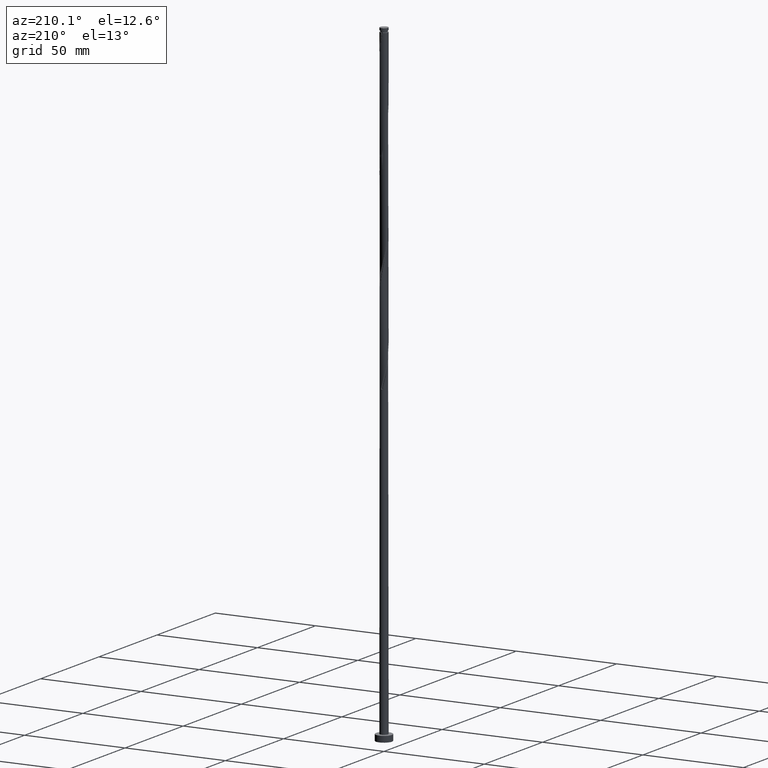
[diagram: clean part render]
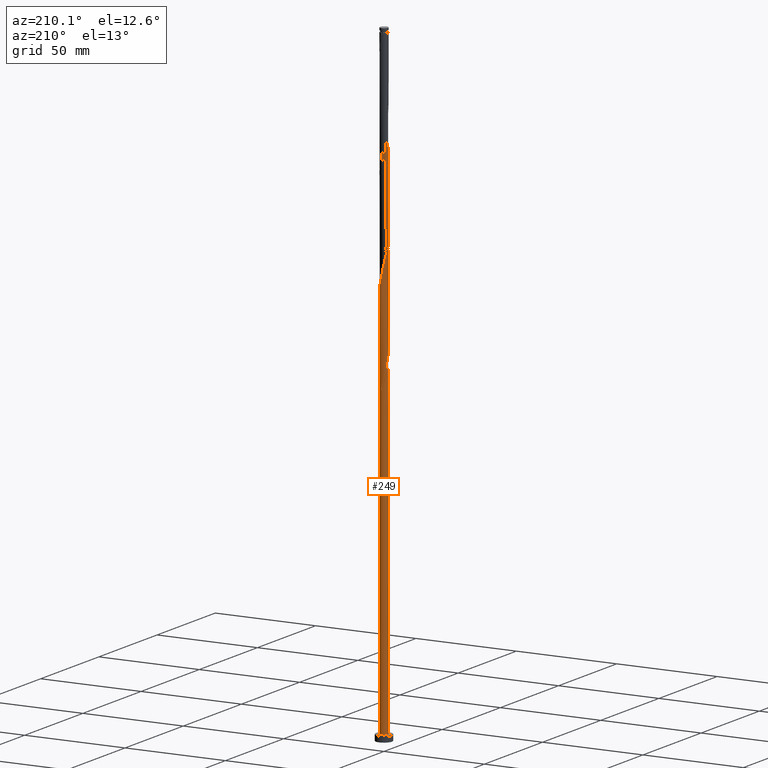
[diagram: same view with one face highlighted and labeled with its STEP entity id]
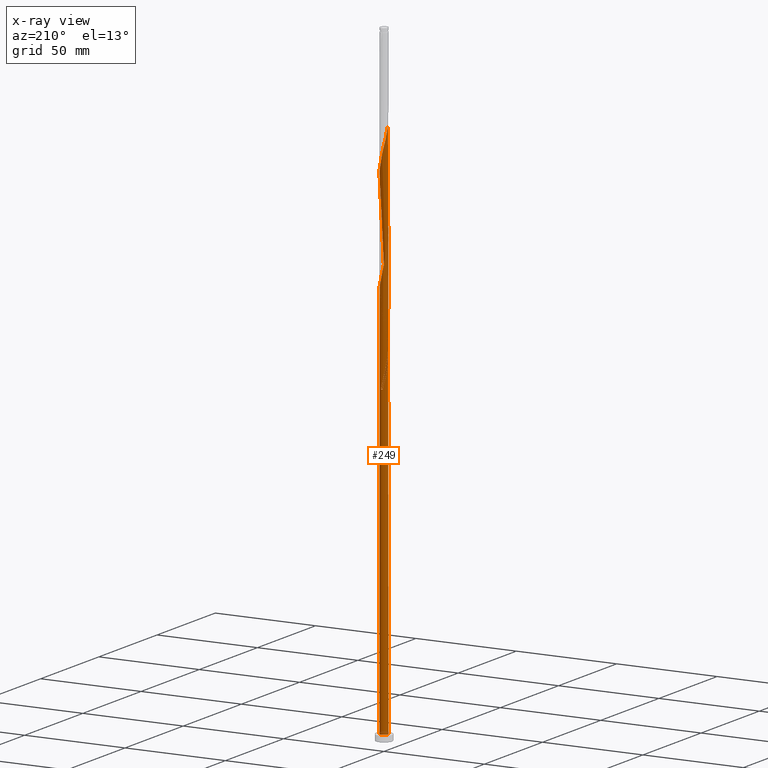
[diagram: x-ray of the same camera — body ghosted, the highlighted face saturated]
A machine part, auxiliary view. The second image highlights one B-rep face of the part: STEP entity #249.
The next image is the same camera in x-ray: the body ghosted, the highlighted face saturated — about 0% of this face is hidden behind the body in this view.
In plain terms, the highlighted cylindrical surface (bore or boss wall) has radius 2 mm, axis along (-0, -0, -1).
Its self-contained STEP definition (entity closure, byte-faithful):
#10 = CARTESIAN_POINT ( 'NONE',  ( -1.208993210585249667, 1.593215433254016045, 211.7661309020668625 ) ) ;
#19 = CARTESIAN_POINT ( 'NONE',  ( 0.7102568395283807012, 1.883166478951371126, 203.3286309020668909 ) ) ;
#26 = CARTESIAN_POINT ( 'NONE',  ( -1.780535513642756085, 0.9108750104470637599, 163.0161309020669478 ) ) ;
#36 = CARTESIAN_POINT ( 'NONE',  ( 0.3979949748426505063, 1.959999999999999076, 155.5161309020669194 ) ) ;
#40 = CARTESIAN_POINT ( 'NONE',  ( 0.3979949748426501177, -1.960000000000002629, 234.2661309020669194 ) ) ;
#45 = CARTESIAN_POINT ( 'NONE',  ( -0.04812462067217377487, 1.999420921388279426, 157.3911309020668625 ) ) ;
#50 = CARTESIAN_POINT ( 'NONE',  ( 1.729436252609930280, 1.029480943826289741, 250.2036309020669194 ) ) ;
#58 = CARTESIAN_POINT ( 'NONE',  ( 1.456994613898102253, 1.388505477344208483, 252.0786309020669478 ) ) ;
#64 = CARTESIAN_POINT ( 'NONE',  ( 0.1771560126384324751, 2.004843263880990989, 156.4536309020669194 ) ) ;
#69 = CARTESIAN_POINT ( 'NONE',  ( 0.7102568395283807012, 1.883166478951371126, 255.8286309020669194 ) ) ;
#72 = CARTESIAN_POINT ( 'NONE',  ( 0.000000000000000000, 0.000000000000000000, 3.000000000000000000 ) ) ;
#74 = ORIENTED_EDGE ( 'NONE', *, *, #424, .F. ) ;
#79 = CARTESIAN_POINT ( 'NONE',  ( -0.04812462067217446876, -1.999420921388282979, 232.3911309020669478 ) ) ;
#89 = VERTEX_POINT ( 'NONE', #1254 ) ;
#93 = CARTESIAN_POINT ( 'NONE',  ( -1.593215433254016045, -1.208993210585249445, 172.3911309020668909 ) ) ;
#112 = CARTESIAN_POINT ( 'NONE',  ( -1.999999999999998668, 0.2010075630518445289, 169.4773769010093076 ) ) ;
#128 = CARTESIAN_POINT ( 'NONE',  ( 0.1771560126384322253, -2.004843263880994542, 180.8286309020669194 ) ) ;
#129 = CARTESIAN_POINT ( 'NONE',  ( -1.959999999999998632, 0.3979949748426501732, 168.6411309020669194 ) ) ;
#144 = CARTESIAN_POINT ( 'NONE',  ( -1.938582528923471493, 0.4918310467555804810, 164.8911309020669478 ) ) ;
#145 = CARTESIAN_POINT ( 'NONE',  ( -1.677904548334141044, 1.111493181365747374, 214.5786309020668625 ) ) ;
#153 = CIRCLE ( 'NONE', #1753, 2.000000000000000000 ) ;
#154 = CYLINDRICAL_SURFACE ( 'NONE', #1019, 2.000000000000000000 ) ;
#160 = CARTESIAN_POINT ( 'NONE',  ( -1.208993210585249667, 1.593215433254016045, 159.2661309020668909 ) ) ;
#173 = EDGE_CURVE ( 'NONE', #1482, #244, #985, .T. ) ;
#177 = CARTESIAN_POINT ( 'NONE',  ( 0.9108750104470642039, 1.780535513642755863, 254.8911309020668909 ) ) ;
#185 = CARTESIAN_POINT ( 'NONE',  ( -1.822296494364470387, -0.8241574404365790141, 223.0161309020668909 ) ) ;
#193 = CARTESIAN_POINT ( 'NONE',  ( -1.111493181365747374, -1.677904548334140822, 227.7036309020668909 ) ) ;
#202 = CARTESIAN_POINT ( 'NONE',  ( 0.6188339370468680656, -1.915156736119010494, 235.2036309020669478 ) ) ;
#212 = CARTESIAN_POINT ( 'NONE',  ( -0.9108750104470638709, -1.780535513642755863, 228.6411309020668625 ) ) ;
#222 = CARTESIAN_POINT ( 'NONE',  ( 1.533205012839174319, -1.284243897631924813, 187.3911309020668909 ) ) ;
#227 = ORIENTED_EDGE ( 'NONE', *, *, #994, .T. ) ;
#244 = VERTEX_POINT ( 'NONE', #1523 ) ;
#247 = CARTESIAN_POINT ( 'NONE',  ( -0.4918310467555808141, -1.938582528923471049, 178.0161309020668625 ) ) ;
#249 = ADVANCED_FACE ( 'NONE', ( #1405 ), #154, .T. ) ;
#257 = CARTESIAN_POINT ( 'NONE',  ( -1.284243897631922149, 1.533205012839172543, 163.0161309020669194 ) ) ;
#265 = CARTESIAN_POINT ( 'NONE',  ( 1.456994613898102253, 1.388505477344208483, 199.5786309020669478 ) ) ;
#273 = CARTESIAN_POINT ( 'NONE',  ( -1.993998578895571860, 0.2734052539827810935, 165.8286309020669194 ) ) ;
#281 = CARTESIAN_POINT ( 'NONE',  ( -1.533205012839174763, 1.284243897631924813, 161.1411309020669194 ) ) ;
#289 = DIRECTION ( 'NONE',  ( -1.000000000000000000, 0.000000000000000000, 0.000000000000000000 ) ) ;
#291 = VECTOR ( 'NONE', #1673, 1000.000000000000000 ) ;
#297 = CARTESIAN_POINT ( 'NONE',  ( 1.993998578895571638, -0.2734052539827813155, 192.0786309020669194 ) ) ;
#300 = EDGE_CURVE ( 'NONE', #89, #244, #520, .T. ) ;
#316 = CARTESIAN_POINT ( 'NONE',  ( -1.284243897631924813, -1.533205012839174763, 226.7661309020668909 ) ) ;
#326 = CARTESIAN_POINT ( 'NONE',  ( 1.822296494364470387, 0.8241574404365790141, 249.2661309020669194 ) ) ;
#342 = CARTESIAN_POINT ( 'NONE',  ( -1.533205012839174763, 1.284243897631924813, 266.1411309020668909 ) ) ;
#377 = ORIENTED_EDGE ( 'NONE', *, *, #1677, .F. ) ;
#388 = CARTESIAN_POINT ( 'NONE',  ( -0.9108750104470619835, 1.780535513642753198, 161.1411309020670046 ) ) ;
#397 = CARTESIAN_POINT ( 'NONE',  ( -1.111493181365747374, -1.677904548334140822, 175.2036309020668909 ) ) ;
#406 = CARTESIAN_POINT ( 'NONE',  ( -0.3979949748426498402, 1.960000000000002629, 208.0161309020669194 ) ) ;
#409 = DIRECTION ( 'NONE',  ( 1.000000000000000000, 0.000000000000000000, 0.000000000000000000 ) ) ;
#417 = CARTESIAN_POINT ( 'NONE',  ( -1.993998578895571860, 0.2734052539827810935, 218.3286309020670046 ) ) ;
#424 = EDGE_CURVE ( 'NONE', #1124, #1774, #1176, .T. ) ;
#425 = CARTESIAN_POINT ( 'NONE',  ( -1.388505477344208705, 1.456994613898102253, 160.2036309020669478 ) ) ;
#426 = CARTESIAN_POINT ( 'NONE',  ( 0.2734052539827813155, 1.993998578895571638, 205.2036309020669478 ) ) ;
#431 = CARTESIAN_POINT ( 'NONE',  ( -2.000000000000002665, 0.02406579433278400321, 166.8662511359357552 ) ) ;
#433 = VECTOR ( 'NONE', #627, 1000.000000000000000 ) ;
#444 = CARTESIAN_POINT ( 'NONE',  ( 1.593215433254016267, 1.208993210585249445, 198.6411309020669194 ) ) ;
#452 = CARTESIAN_POINT ( 'NONE',  ( 1.533205012839174319, -1.284243897631924813, 239.8911309020668909 ) ) ;
#460 = CARTESIAN_POINT ( 'NONE',  ( 0.4918310467555809251, 1.938582528923471493, 256.7661309020668909 ) ) ;
#464 = AXIS2_PLACEMENT_3D ( 'NONE', #72, #757, #1708 ) ;
#472 = CARTESIAN_POINT ( 'NONE',  ( -1.780535513642756085, 0.9108750104470637599, 268.0161309020669478 ) ) ;
#475 = CARTESIAN_POINT ( 'NONE',  ( -2.000000000000000000, 0.000000000000000000, 315.0000000000000000 ) ) ;
#482 = CARTESIAN_POINT ( 'NONE',  ( 1.960000000000002629, 0.3979949748426499512, 247.3911309020669762 ) ) ;
#493 = EDGE_CURVE ( 'NONE', #1482, #1124, #803, .T. ) ;
#520 = CIRCLE ( 'NONE', #464, 2.000000000000000000 ) ;
#526 = CARTESIAN_POINT ( 'NONE',  ( 1.677904548334141044, -1.111493181365747818, 188.3286309020669478 ) ) ;
#545 = CARTESIAN_POINT ( 'NONE',  ( -0.1771560126384319755, 2.004843263880994542, 207.0786309020669478 ) ) ;
#558 = CARTESIAN_POINT ( 'NONE',  ( -1.780535513642756085, 0.9108750104470637599, 215.5161309020668909 ) ) ;
#568 = CARTESIAN_POINT ( 'NONE',  ( 0.4918310467555809251, 1.938582528923471493, 204.2661309020668625 ) ) ;
#578 = CARTESIAN_POINT ( 'NONE',  ( -1.999420921388282979, 0.04812462067217436468, 166.7661309020669478 ) ) ;
#596 = CARTESIAN_POINT ( 'NONE',  ( 1.938582528923471493, -0.4918310467555809251, 243.6411309020669194 ) ) ;
#604 = CARTESIAN_POINT ( 'NONE',  ( -1.999999999999999556, 2.089608293013599291E-15, 170.3156479799729652 ) ) ;
#605 = CARTESIAN_POINT ( 'NONE',  ( 1.593215433254016267, 1.208993210585249445, 251.1411309020668625 ) ) ;
#614 = CARTESIAN_POINT ( 'NONE',  ( 1.208993210585249445, -1.593215433254016045, 238.0161309020668625 ) ) ;
#624 = CARTESIAN_POINT ( 'NONE',  ( -1.029480943826290185, 1.729436252609930280, 263.3286309020668909 ) ) ;
#627 = DIRECTION ( 'NONE',  ( -0.000000000000000000, -0.000000000000000000, -1.000000000000000000 ) ) ;
#632 = CARTESIAN_POINT ( 'NONE',  ( 1.677904548334141044, -1.111493181365747818, 240.8286309020668909 ) ) ;
#643 = CARTESIAN_POINT ( 'NONE',  ( -0.04812462067217446876, -1.999420921388282979, 179.8911309020668909 ) ) ;
#671 = CARTESIAN_POINT ( 'NONE',  ( -1.822296494364470387, -0.8241574404365790141, 170.5161309020669478 ) ) ;
#677 = ORIENTED_EDGE ( 'NONE', *, *, #1561, .F. ) ;
#680 = CARTESIAN_POINT ( 'NONE',  ( -1.822296494364466835, 0.8241574404365784590, 166.7661309020669478 ) ) ;
#713 = CARTESIAN_POINT ( 'NONE',  ( -1.388505477344208705, 1.456994613898102253, 212.7036309020669478 ) ) ;
#717 = ORIENTED_EDGE ( 'NONE', *, *, #173, .T. ) ;
#728 = CARTESIAN_POINT ( 'NONE',  ( 1.780535513642755863, -0.9108750104470642039, 241.7661309020669194 ) ) ;
#736 = CARTESIAN_POINT ( 'NONE',  ( -0.2734052539827812045, -1.993998578895571860, 231.4536309020669194 ) ) ;
#747 = CARTESIAN_POINT ( 'NONE',  ( -0.4918310467555808141, -1.938582528923471049, 230.5161309020669194 ) ) ;
#755 = CARTESIAN_POINT ( 'NONE',  ( -1.915156736119010494, -0.6188339370468681766, 222.0786309020669194 ) ) ;
#757 = DIRECTION ( 'NONE',  ( 0.000000000000000000, 0.000000000000000000, 1.000000000000000000 ) ) ;
#758 = AXIS2_PLACEMENT_3D ( 'NONE', #1552, #1666, #409 ) ;
#766 = CARTESIAN_POINT ( 'NONE',  ( 0.1771560126384322253, -2.004843263880994542, 233.3286309020669478 ) ) ;
#782 = CARTESIAN_POINT ( 'NONE',  ( -1.915156736119010494, -0.6188339370468681766, 169.5786309020669478 ) ) ;
#798 = CARTESIAN_POINT ( 'NONE',  ( -2.000000000000003109, -1.488845908772177317E-15, 166.9666138241609019 ) ) ;
#803 =( BOUNDED_CURVE ( )  B_SPLINE_CURVE ( 2, ( #798, #1219, #1068, #782, #671, #1778, #93, #809, #1239, #397, #947, #1377, #247, #1077, #643, #128, #939, #1494, #1798, #1788, #1626, #955, #222, #526, #1089, #1208, #1551, #297, #964, #1265, #1698, #1127, #1681, #984, #444, #265, #1257, #1663, #1274, #19, #568, #426, #1807, #545, #406, #1522, #827, #1414, #10, #713, #1397, #145, #558, #1119, #1672, #417, #1724, #1435, #1706, #755, #185, #1040, #1745, #871, #316, #193, #212, #1292, #747, #736, #79, #766, #40, #202, #1443, #1307, #614, #1183, #452, #632, #728, #1153, #596, #1576, #1298, #1161, #482, #897, #326, #50, #605, #58, #1715, #1318, #177, #69, #460, #1173, #1021, #1011, #1567, #861, #1596, #624, #1191, #1735, #342, #1031, #472, #1428, #1459, #881, #1585, #1330, #1004 ),
 .UNSPECIFIED., .F., .T. ) 
 B_SPLINE_CURVE_WITH_KNOTS ( ( 3, 2, 2, 2, 2, 2, 2, 2, 2, 2, 2, 2, 2, 2, 2, 2, 2, 2, 2, 2, 2, 2, 2, 2, 2, 2, 2, 2, 2, 2, 2, 2, 2, 2, 2, 2, 2, 2, 2, 2, 2, 2, 2, 2, 2, 2, 2, 2, 2, 2, 2, 2, 2, 2, 2, 2, 2, 3 ),
 ( 0.05453034012992190316, 0.06250000000000000000, 0.07142857142857139685, 0.08035714285714290472, 0.08928571428571430157, 0.09821428571428569843, 0.1071428571428570953, 0.1160714285714286031, 0.1250000000000000000, 0.1339285714285713969, 0.1428571428571429047, 0.1517857142857143016, 0.1607142857142856984, 0.1696428571428570953, 0.1785714285714286031, 0.1875000000000000000, 0.1964285714285713969, 0.2053571428571429047, 0.2142857142857143016, 0.2232142857142856984, 0.2321428571428570953, 0.2410714285714286031, 0.2500000000000000000, 0.2589285714285713969, 0.2678571428571429047, 0.2767857142857143016, 0.2857142857142856984, 0.2946428571428570953, 0.3035714285714286031, 0.3125000000000000000, 0.3214285714285713969, 0.3303571428571429047, 0.3392857142857143016, 0.3482142857142856984, 0.3571428571428570953, 0.3660714285714286031, 0.3750000000000000000, 0.3839285714285713969, 0.3928571428571429047, 0.4017857142857143016, 0.4107142857142856984, 0.4196428571428570953, 0.4285714285714286031, 0.4375000000000000000, 0.4464285714285713969, 0.4553571428571429047, 0.4642857142857143016, 0.4732142857142856984, 0.4821428571428570953, 0.4910714285714286031, 0.5000000000000000000, 0.5089285714285713969, 0.5178571428571427937, 0.5267857142857143016, 0.5357142857142856984, 0.5446428571428572063, 0.5535714285714286031, 0.5545303401299218615 ),
 .UNSPECIFIED. ) 
 CURVE ( )  GEOMETRIC_REPRESENTATION_ITEM ( )  RATIONAL_B_SPLINE_CURVE ( ( 0.9079949616362383846, 0.9039886423361009893, 0.9090909090909681245, 0.9033747362666427749, 0.9090909090909681245, 0.9033747362666427749, 0.9090909090909681245, 0.9033747362666427749, 0.9090909090909681245, 0.9033747362666427749, 0.9090909090909681245, 0.9033747362666427749, 0.9090909090909681245, 0.9033747362666427749, 0.9090909090909681245, 0.9033747362666427749, 0.9090909090909681245, 0.9033747362666427749, 0.9090909090909681245, 0.9033747362666427749, 0.9090909090909681245, 0.9033747362666427749, 0.9090909090909681245, 0.9033747362666427749, 0.9090909090909681245, 0.9033747362666427749, 0.9090909090909681245, 0.9033747362666427749, 0.9090909090909681245, 0.9033747362666427749, 0.9090909090909681245, 0.9033747362666427749, 0.9090909090909681245, 0.9033747362666427749, 0.9090909090909681245, 0.9033747362666427749, 0.9090909090909681245, 0.9033747362666427749, 0.9090909090909681245, 0.9033747362666427749, 0.9090909090909681245, 0.9033747362666427749, 0.9090909090909681245, 0.9033747362666427749, 0.9090909090909681245, 0.9033747362666427749, 0.9090909090909681245, 0.9033747362666427749, 0.9090909090909681245, 0.9033747362666427749, 0.9090909090909681245, 0.9033747362666427749, 0.9090909090909681245, 0.9033747362666427749, 0.9090909090909681245, 0.9033747362666427749, 0.9090909090909681245, 0.9033747362666427749, 0.9090909090909681245, 0.9033747362666427749, 0.9090909090909681245, 0.9033747362666427749, 0.9090909090909681245, 0.9033747362666427749, 0.9090909090909681245, 0.9033747362666427749, 0.9090909090909681245, 0.9033747362666427749, 0.9090909090909681245, 0.9033747362666427749, 0.9090909090909681245, 0.9033747362666427749, 0.9090909090909681245, 0.9033747362666427749, 0.9090909090909681245, 0.9033747362666427749, 0.9090909090909681245, 0.9033747362666427749, 0.9090909090909681245, 0.9033747362666427749, 0.9090909090909681245, 0.9033747362666427749, 0.9090909090909681245, 0.9033747362666427749, 0.9090909090909681245, 0.9033747362666427749, 0.9090909090909681245, 0.9033747362666427749, 0.9090909090909681245, 0.9033747362666427749, 0.9090909090909681245, 0.9033747362666427749, 0.9090909090909681245, 0.9033747362666427749, 0.9090909090909681245, 0.9033747362666427749, 0.9090909090909681245, 0.9033747362666427749, 0.9090909090909681245, 0.9033747362666427749, 0.9090909090909681245, 0.9033747362666427749, 0.9090909090909681245, 0.9033747362666427749, 0.9090909090909681245, 0.9033747362666427749, 0.9090909090909681245, 0.9033747362666427749, 0.9090909090909681245, 0.9033747362666427749, 0.9090909090909681245, 0.9033747362666427749, 0.9090909090909681245, 0.9084770030215100212, 0.9079949616362383846 ) ) 
 REPRESENTATION_ITEM ( '' )  );
#809 = CARTESIAN_POINT ( 'NONE',  ( -1.456994613898102253, -1.388505477344208705, 173.3286309020669478 ) ) ;
#810 = CARTESIAN_POINT ( 'NONE',  ( -1.593215433254013380, 1.208993210585247891, 164.8911309020669478 ) ) ;
#827 = CARTESIAN_POINT ( 'NONE',  ( -0.8241574404365793471, 1.822296494364470387, 209.8911309020669478 ) ) ;
#831 = ORIENTED_EDGE ( 'NONE', *, *, #300, .T. ) ;
#849 = ORIENTED_EDGE ( 'NONE', *, *, #914, .T. ) ;
#861 = CARTESIAN_POINT ( 'NONE',  ( -0.6188339370468681766, 1.915156736119010494, 261.4536309020668341 ) ) ;
#871 = CARTESIAN_POINT ( 'NONE',  ( -1.456994613898102253, -1.388505477344208705, 225.8286309020668909 ) ) ;
#875 = CARTESIAN_POINT ( 'NONE',  ( -2.000000000000002665, -1.194061881722046849E-15, 271.9666138241607882 ) ) ;
#881 = CARTESIAN_POINT ( 'NONE',  ( -1.993998578895571860, 0.2734052539827810935, 270.8286309020670046 ) ) ;
#897 = CARTESIAN_POINT ( 'NONE',  ( 1.915156736119010494, 0.6188339370468680656, 248.3286309020669478 ) ) ;
#914 = EDGE_CURVE ( 'NONE', #244, #89, #1457, .T. ) ;
#921 = CARTESIAN_POINT ( 'NONE',  ( -2.000000000000003109, -1.488845908772177514E-15, 166.9666138241609019 ) ) ;
#939 = CARTESIAN_POINT ( 'NONE',  ( 0.3979949748426501177, -1.960000000000002629, 181.7661309020669478 ) ) ;
#947 = CARTESIAN_POINT ( 'NONE',  ( -0.9108750104470638709, -1.780535513642755863, 176.1411309020669194 ) ) ;
#948 = CARTESIAN_POINT ( 'NONE',  ( -0.4918310467555793153, 1.938582528923467940, 159.2661309020669478 ) ) ;
#955 = CARTESIAN_POINT ( 'NONE',  ( 1.388505477344208705, -1.456994613898102253, 186.4536309020669194 ) ) ;
#964 = CARTESIAN_POINT ( 'NONE',  ( 1.999420921388282979, -0.04812462067217463529, 193.0161309020668625 ) ) ;
#972 = CARTESIAN_POINT ( 'NONE',  ( -0.3979949748426499512, 1.960000000000002629, 155.5161309020669194 ) ) ;
#973 = ORIENTED_EDGE ( 'NONE', *, *, #173, .F. ) ;
#984 = CARTESIAN_POINT ( 'NONE',  ( 1.729436252609930280, 1.029480943826289741, 197.7036309020669762 ) ) ;
#985 = LINE ( 'NONE', #1682, #291 ) ;
#994 = EDGE_CURVE ( 'NONE', #1687, #1580, #153, .T. ) ;
#1003 = CARTESIAN_POINT ( 'NONE',  ( -0.8241574404365793471, 1.822296494364470387, 157.3911309020669194 ) ) ;
#1004 = CARTESIAN_POINT ( 'NONE',  ( -2.000000000000002665, -1.194061881722046849E-15, 271.9666138241607882 ) ) ;
#1011 = CARTESIAN_POINT ( 'NONE',  ( -0.1771560126384319755, 2.004843263880994542, 259.5786309020668909 ) ) ;
#1019 = AXIS2_PLACEMENT_3D ( 'NONE', #1128, #1540, #289 ) ;
#1021 = CARTESIAN_POINT ( 'NONE',  ( 0.04812462067217478795, 1.999420921388282979, 258.6411309020668909 ) ) ;
#1031 = CARTESIAN_POINT ( 'NONE',  ( -1.677904548334141044, 1.111493181365747374, 267.0786309020668909 ) ) ;
#1040 = CARTESIAN_POINT ( 'NONE',  ( -1.729436252609930280, -1.029480943826289741, 223.9536309020669762 ) ) ;
#1068 = CARTESIAN_POINT ( 'NONE',  ( -1.960000000000002629, -0.3979949748426502842, 168.6411309020670046 ) ) ;
#1077 = CARTESIAN_POINT ( 'NONE',  ( -0.2734052539827812045, -1.993998578895571860, 178.9536309020668909 ) ) ;
#1089 = CARTESIAN_POINT ( 'NONE',  ( 1.780535513642755863, -0.9108750104470642039, 189.2661309020668909 ) ) ;
#1090 = CARTESIAN_POINT ( 'NONE',  ( -1.456994613898098923, 1.388505477344206263, 163.9536309020669194 ) ) ;
#1095 = EDGE_LOOP ( 'NONE', ( #74, #1392, #717, #849, #831, #973, #377, #227, #677 ) ) ;
#1119 = CARTESIAN_POINT ( 'NONE',  ( -1.883166478951371126, 0.7102568395283802571, 216.4536309020669194 ) ) ;
#1124 = VERTEX_POINT ( 'NONE', #875 ) ;
#1126 = CARTESIAN_POINT ( 'NONE',  ( -0.3979949748426499512, 1.960000000000002629, 155.5161309020669194 ) ) ;
#1127 = CARTESIAN_POINT ( 'NONE',  ( 1.915156736119010494, 0.6188339370468680656, 195.8286309020669194 ) ) ;
#1128 = CARTESIAN_POINT ( 'NONE',  ( 0.000000000000000000, 0.000000000000000000, 315.0000000000000000 ) ) ;
#1153 = CARTESIAN_POINT ( 'NONE',  ( 1.883166478951371348, -0.7102568395283802571, 242.7036309020668909 ) ) ;
#1161 = CARTESIAN_POINT ( 'NONE',  ( 2.004843263880994542, 0.1771560126384321421, 246.4536309020669194 ) ) ;
#1173 = CARTESIAN_POINT ( 'NONE',  ( 0.2734052539827813155, 1.993998578895571638, 257.7036309020669478 ) ) ;
#1176 = LINE ( 'NONE', #475, #433 ) ;
#1183 = CARTESIAN_POINT ( 'NONE',  ( 1.388505477344208705, -1.456994613898102253, 238.9536309020669478 ) ) ;
#1191 = CARTESIAN_POINT ( 'NONE',  ( -1.208993210585249667, 1.593215433254016045, 264.2661309020668341 ) ) ;
#1200 =( BOUNDED_CURVE ( )  B_SPLINE_CURVE ( 2, ( #1357, #112, #129, #1799, #680, #1504, #810, #1090, #257, #1250, #388, #1648, #948, #1378, #45, #64, #1286 ),
 .UNSPECIFIED., .F., .T. ) 
 B_SPLINE_CURVE_WITH_KNOTS ( ( 3, 2, 2, 2, 2, 2, 2, 2, 3 ),
 ( 0.9295303401299220836, 0.9375000000000000000, 0.9464285714285713969, 0.9553571428571429047, 0.9642857142857143016, 0.9732142857142856984, 0.9821428571428570953, 0.9910714285714286031, 1.000000000000000000 ),
 .UNSPECIFIED. ) 
 CURVE ( )  GEOMETRIC_REPRESENTATION_ITEM ( )  RATIONAL_B_SPLINE_CURVE ( ( 0.9079949616362307241, 0.9039886423360937728, 0.9090909090909605750, 0.9033747362666354475, 0.9090909090909605750, 0.9033747362666354475, 0.9090909090909605750, 0.9033747362666354475, 0.9090909090909605750, 0.9033747362666354475, 0.9090909090909605750, 0.9033747362666354475, 0.9090909090909605750, 0.9033747362666354475, 0.9090909090909605750, 0.9033747362666354475, 0.9090909090909605750 ) ) 
 REPRESENTATION_ITEM ( '' )  );
#1208 = CARTESIAN_POINT ( 'NONE',  ( 1.883166478951371348, -0.7102568395283802571, 190.2036309020669194 ) ) ;
#1219 = CARTESIAN_POINT ( 'NONE',  ( -2.000000000000003553, -0.2010075630518398937, 167.8048849031245027 ) ) ;
#1239 = CARTESIAN_POINT ( 'NONE',  ( -1.284243897631924813, -1.533205012839174763, 174.2661309020669194 ) ) ;
#1250 = CARTESIAN_POINT ( 'NONE',  ( -1.111493181365745375, 1.677904548334138157, 162.0786309020668909 ) ) ;
#1254 = CARTESIAN_POINT ( 'NONE',  ( 2.000000000000000000, 0.000000000000000000, 3.000000000000000000 ) ) ;
#1257 = CARTESIAN_POINT ( 'NONE',  ( 1.284243897631924813, 1.533205012839174319, 200.5161309020669194 ) ) ;
#1265 = CARTESIAN_POINT ( 'NONE',  ( 2.004843263880994542, 0.1771560126384321421, 193.9536309020669194 ) ) ;
#1274 = CARTESIAN_POINT ( 'NONE',  ( 0.9108750104470642039, 1.780535513642755863, 202.3911309020669194 ) ) ;
#1275 = DIRECTION ( 'NONE',  ( 0.000000000000000000, -0.000000000000000000, -1.000000000000000000 ) ) ;
#1279 = CARTESIAN_POINT ( 'NONE',  ( -1.677904548334141044, 1.111493181365747374, 162.0786309020669194 ) ) ;
#1284 = CARTESIAN_POINT ( 'NONE',  ( -1.883166478951371126, 0.7102568395283802571, 163.9536309020668909 ) ) ;
#1286 = CARTESIAN_POINT ( 'NONE',  ( 0.3979949748426505063, 1.959999999999999076, 155.5161309020669194 ) ) ;
#1292 = CARTESIAN_POINT ( 'NONE',  ( -0.7102568395283802571, -1.883166478951371348, 229.5786309020668909 ) ) ;
#1298 = CARTESIAN_POINT ( 'NONE',  ( 1.999420921388282979, -0.04812462067217463529, 245.5161309020668625 ) ) ;
#1307 = CARTESIAN_POINT ( 'NONE',  ( 1.029480943826289741, -1.729436252609930280, 237.0786309020669478 ) ) ;
#1318 = CARTESIAN_POINT ( 'NONE',  ( 1.111493181365747818, 1.677904548334140600, 253.9536309020669194 ) ) ;
#1330 = CARTESIAN_POINT ( 'NONE',  ( -2.000000000000002665, 0.02406579433278505098, 271.8662511359357268 ) ) ;
#1357 = CARTESIAN_POINT ( 'NONE',  ( -1.999999999999999556, 2.089608293013599291E-15, 170.3156479799729652 ) ) ;
#1377 = CARTESIAN_POINT ( 'NONE',  ( -0.7102568395283802571, -1.883166478951371348, 177.0786309020668909 ) ) ;
#1378 = CARTESIAN_POINT ( 'NONE',  ( -0.2734052539827800943, 1.993998578895568086, 158.3286309020668625 ) ) ;
#1387 =( BOUNDED_CURVE ( )  B_SPLINE_CURVE ( 2, ( #1126, #1680, #1003, #1521, #160, #425, #281, #1279, #26, #1284, #144, #273, #578, #431, #1421 ),
 .UNSPECIFIED., .F., .T. ) 
 B_SPLINE_CURVE_WITH_KNOTS ( ( 3, 2, 2, 2, 2, 2, 2, 3 ),
 ( 0.000000000000000000, 0.008928571428571396851, 0.01785714285714290472, 0.02678571428571430157, 0.03571428571428569843, 0.04464285714285709528, 0.05357142857142860315, 0.05453034012992190316 ),
 .UNSPECIFIED. ) 
 CURVE ( )  GEOMETRIC_REPRESENTATION_ITEM ( )  RATIONAL_B_SPLINE_CURVE ( ( 0.9090909090909681245, 0.9033747362666427749, 0.9090909090909681245, 0.9033747362666427749, 0.9090909090909681245, 0.9033747362666427749, 0.9090909090909681245, 0.9033747362666427749, 0.9090909090909681245, 0.9033747362666427749, 0.9090909090909681245, 0.9033747362666427749, 0.9090909090909681245, 0.9084770030215100212, 0.9079949616362383846 ) ) 
 REPRESENTATION_ITEM ( '' )  );
#1389 = DIRECTION ( 'NONE',  ( -1.000000000000000000, 0.000000000000000000, 0.000000000000000000 ) ) ;
#1392 = ORIENTED_EDGE ( 'NONE', *, *, #493, .F. ) ;
#1397 = CARTESIAN_POINT ( 'NONE',  ( -1.533205012839174763, 1.284243897631924813, 213.6411309020669194 ) ) ;
#1405 = FACE_OUTER_BOUND ( 'NONE', #1095, .T. ) ;
#1414 = CARTESIAN_POINT ( 'NONE',  ( -1.029480943826290185, 1.729436252609930280, 210.8286309020668909 ) ) ;
#1421 = CARTESIAN_POINT ( 'NONE',  ( -2.000000000000003109, -1.488845908772177317E-15, 166.9666138241609019 ) ) ;
#1428 = CARTESIAN_POINT ( 'NONE',  ( -1.883166478951371126, 0.7102568395283802571, 268.9536309020669478 ) ) ;
#1435 = CARTESIAN_POINT ( 'NONE',  ( -2.004843263880994542, -0.1771560126384323919, 220.2036309020669194 ) ) ;
#1443 = CARTESIAN_POINT ( 'NONE',  ( 0.8241574404365790141, -1.822296494364470387, 236.1411309020669194 ) ) ;
#1457 = CIRCLE ( 'NONE', #758, 2.000000000000000000 ) ;
#1459 = CARTESIAN_POINT ( 'NONE',  ( -1.938582528923471493, 0.4918310467555804810, 269.8911309020669478 ) ) ;
#1482 = VERTEX_POINT ( 'NONE', #921 ) ;
#1494 = CARTESIAN_POINT ( 'NONE',  ( 0.6188339370468680656, -1.915156736119010494, 182.7036309020669478 ) ) ;
#1504 = CARTESIAN_POINT ( 'NONE',  ( -1.729436252609926283, 1.029480943826289074, 165.8286309020669194 ) ) ;
#1521 = CARTESIAN_POINT ( 'NONE',  ( -1.029480943826290185, 1.729436252609930280, 158.3286309020668909 ) ) ;
#1522 = CARTESIAN_POINT ( 'NONE',  ( -0.6188339370468681766, 1.915156736119010494, 208.9536309020669194 ) ) ;
#1523 = CARTESIAN_POINT ( 'NONE',  ( -2.000000000000000000, 0.000000000000000000, 3.000000000000000000 ) ) ;
#1540 = DIRECTION ( 'NONE',  ( -0.000000000000000000, -0.000000000000000000, -1.000000000000000000 ) ) ;
#1551 = CARTESIAN_POINT ( 'NONE',  ( 1.938582528923471493, -0.4918310467555809251, 191.1411309020668625 ) ) ;
#1552 = CARTESIAN_POINT ( 'NONE',  ( 0.000000000000000000, 0.000000000000000000, 3.000000000000000000 ) ) ;
#1561 = EDGE_CURVE ( 'NONE', #1774, #1580, #1200, .T. ) ;
#1567 = CARTESIAN_POINT ( 'NONE',  ( -0.3979949748426498402, 1.960000000000002629, 260.5161309020668909 ) ) ;
#1576 = CARTESIAN_POINT ( 'NONE',  ( 1.993998578895571638, -0.2734052539827813155, 244.5786309020669478 ) ) ;
#1580 = VERTEX_POINT ( 'NONE', #36 ) ;
#1585 = CARTESIAN_POINT ( 'NONE',  ( -1.999420921388282979, 0.04812462067217436468, 271.7661309020668909 ) ) ;
#1596 = CARTESIAN_POINT ( 'NONE',  ( -0.8241574404365793471, 1.822296494364470387, 262.3911309020668909 ) ) ;
#1626 = CARTESIAN_POINT ( 'NONE',  ( 1.208993210585249445, -1.593215433254016045, 185.5161309020669194 ) ) ;
#1648 = CARTESIAN_POINT ( 'NONE',  ( -0.7102568395283782587, 1.883166478951367573, 160.2036309020669478 ) ) ;
#1663 = CARTESIAN_POINT ( 'NONE',  ( 1.111493181365747818, 1.677904548334140600, 201.4536309020669194 ) ) ;
#1666 = DIRECTION ( 'NONE',  ( 0.000000000000000000, 0.000000000000000000, 1.000000000000000000 ) ) ;
#1672 = CARTESIAN_POINT ( 'NONE',  ( -1.938582528923471493, 0.4918310467555804810, 217.3911309020668625 ) ) ;
#1673 = DIRECTION ( 'NONE',  ( -0.000000000000000000, -0.000000000000000000, -1.000000000000000000 ) ) ;
#1677 = EDGE_CURVE ( 'NONE', #1687, #1482, #1387, .T. ) ;
#1680 = CARTESIAN_POINT ( 'NONE',  ( -0.6188339370468681766, 1.915156736119010494, 156.4536309020669194 ) ) ;
#1681 = CARTESIAN_POINT ( 'NONE',  ( 1.822296494364470387, 0.8241574404365790141, 196.7661309020669194 ) ) ;
#1682 = CARTESIAN_POINT ( 'NONE',  ( -2.000000000000000000, 0.000000000000000000, 315.0000000000000000 ) ) ;
#1687 = VERTEX_POINT ( 'NONE', #972 ) ;
#1690 = CARTESIAN_POINT ( 'NONE',  ( 0.000000000000000000, 0.000000000000000000, 155.5161309020669194 ) ) ;
#1698 = CARTESIAN_POINT ( 'NONE',  ( 1.960000000000002629, 0.3979949748426499512, 194.8911309020668909 ) ) ;
#1706 = CARTESIAN_POINT ( 'NONE',  ( -1.960000000000002629, -0.3979949748426502842, 221.1411309020668909 ) ) ;
#1708 = DIRECTION ( 'NONE',  ( 1.000000000000000000, 0.000000000000000000, 0.000000000000000000 ) ) ;
#1715 = CARTESIAN_POINT ( 'NONE',  ( 1.284243897631924813, 1.533205012839174319, 253.0161309020669194 ) ) ;
#1724 = CARTESIAN_POINT ( 'NONE',  ( -1.999420921388282979, 0.04812462067217436468, 219.2661309020669478 ) ) ;
#1735 = CARTESIAN_POINT ( 'NONE',  ( -1.388505477344208705, 1.456994613898102253, 265.2036309020670046 ) ) ;
#1745 = CARTESIAN_POINT ( 'NONE',  ( -1.593215433254016045, -1.208993210585249445, 224.8911309020668625 ) ) ;
#1753 = AXIS2_PLACEMENT_3D ( 'NONE', #1690, #1275, #1389 ) ;
#1774 = VERTEX_POINT ( 'NONE', #604 ) ;
#1778 = CARTESIAN_POINT ( 'NONE',  ( -1.729436252609930280, -1.029480943826289741, 171.4536309020669478 ) ) ;
#1788 = CARTESIAN_POINT ( 'NONE',  ( 1.029480943826289741, -1.729436252609930280, 184.5786309020669194 ) ) ;
#1798 = CARTESIAN_POINT ( 'NONE',  ( 0.8241574404365790141, -1.822296494364470387, 183.6411309020668909 ) ) ;
#1799 = CARTESIAN_POINT ( 'NONE',  ( -1.915156736119006498, 0.6188339370468675105, 167.7036309020668909 ) ) ;
#1807 = CARTESIAN_POINT ( 'NONE',  ( 0.04812462067217478795, 1.999420921388282979, 206.1411309020668909 ) ) ;